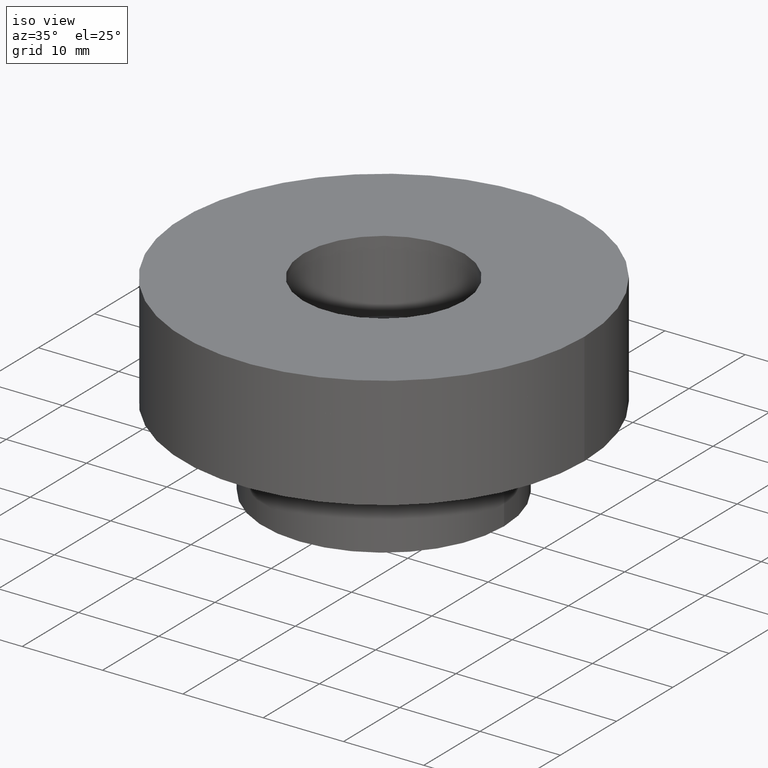
[diagram: clean part render]
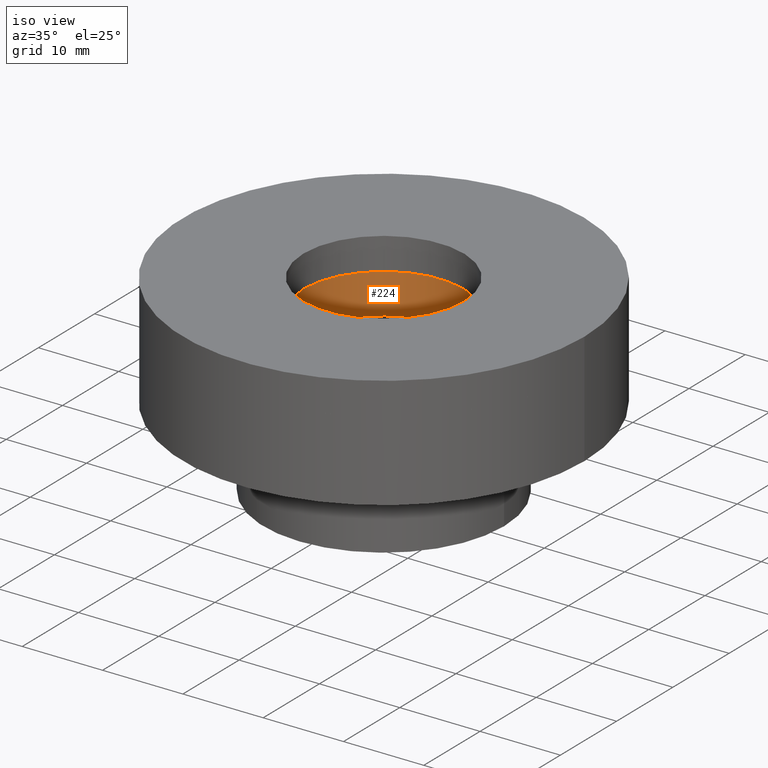
[diagram: same view with one face highlighted and labeled with its STEP entity id]
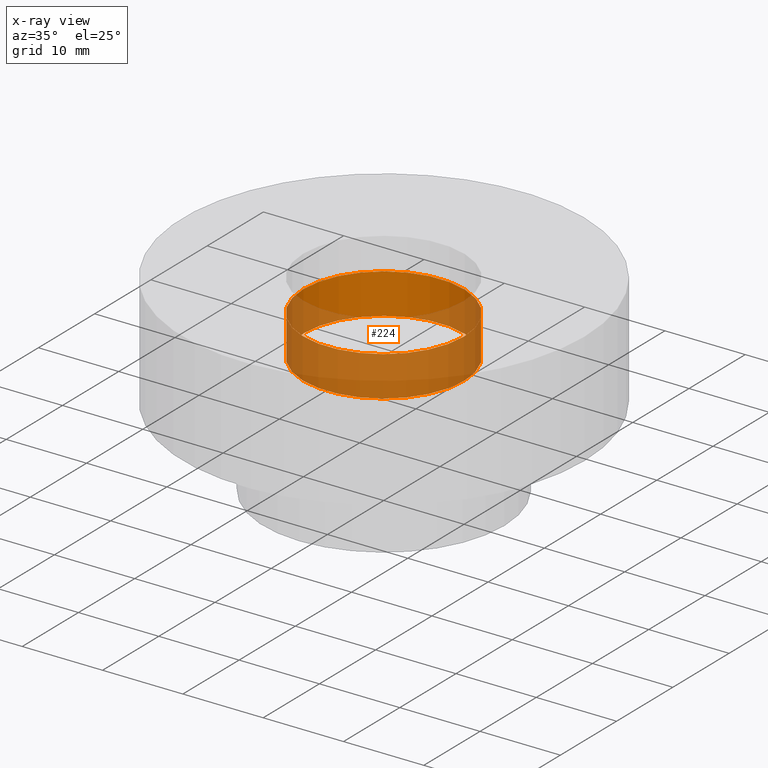
[diagram: x-ray of the same camera — body ghosted, the highlighted face saturated]
A machine part, iso view. The second image highlights one B-rep face of the part: STEP entity #224.
The next image is the same camera in x-ray: the body ghosted, the highlighted face saturated — about 65% of this face is hidden behind the body in this view.
In plain terms, the highlighted cylindrical surface (bore or boss wall) has radius 10 mm, axis along (-0, 0, -1).
Its self-contained STEP definition (entity closure, byte-faithful):
#224 = ADVANCED_FACE( '', ( #269, #270 ), #271, .F. );
#269 = FACE_OUTER_BOUND( '', #341, .T. );
#270 = FACE_OUTER_BOUND( '', #342, .T. );
#271 = CYLINDRICAL_SURFACE( '', #343, 10.0000000000000 );
#341 = EDGE_LOOP( '', ( #444 ) );
#342 = EDGE_LOOP( '', ( #445 ) );
#343 = AXIS2_PLACEMENT_3D( '', #446, #447, #448 );
#444 = ORIENTED_EDGE( '', *, *, #575, .F. );
#445 = ORIENTED_EDGE( '', *, *, #582, .F. );
#446 = CARTESIAN_POINT( '', ( 0.000000000000000, 0.000000000000000, -19.0000000000000 ) );
#447 = DIRECTION( '', ( -0.000000000000000, 0.000000000000000, -1.00000000000000 ) );
#448 = DIRECTION( '', ( -1.00000000000000, 0.000000000000000, 0.000000000000000 ) );
#575 = EDGE_CURVE( '', #631, #631, #632, .T. );
#582 = EDGE_CURVE( '', #643, #643, #644, .F. );
#631 = VERTEX_POINT( '', #717 );
#632 = CIRCLE( '', #718, 10.0000000000000 );
#643 = VERTEX_POINT( '', #837 );
#644 = CIRCLE( '', #838, 10.0000000000000 );
#717 = CARTESIAN_POINT( '', ( 10.0000000000000, 0.000000000000000, -19.0000000000000 ) );
#718 = AXIS2_PLACEMENT_3D( '', #949, #950, #951 );
#837 = CARTESIAN_POINT( '', ( 10.0000000000000, 0.000000000000000, -14.0000000000000 ) );
#838 = AXIS2_PLACEMENT_3D( '', #960, #961, #962 );
#949 = CARTESIAN_POINT( '', ( 0.000000000000000, 0.000000000000000, -19.0000000000000 ) );
#950 = DIRECTION( '', ( 0.000000000000000, -0.000000000000000, 1.00000000000000 ) );
#951 = DIRECTION( '', ( 1.00000000000000, 0.000000000000000, 0.000000000000000 ) );
#960 = CARTESIAN_POINT( '', ( 0.000000000000000, 0.000000000000000, -14.0000000000000 ) );
#961 = DIRECTION( '', ( 0.000000000000000, -0.000000000000000, 1.00000000000000 ) );
#962 = DIRECTION( '', ( 1.00000000000000, 0.000000000000000, 0.000000000000000 ) );